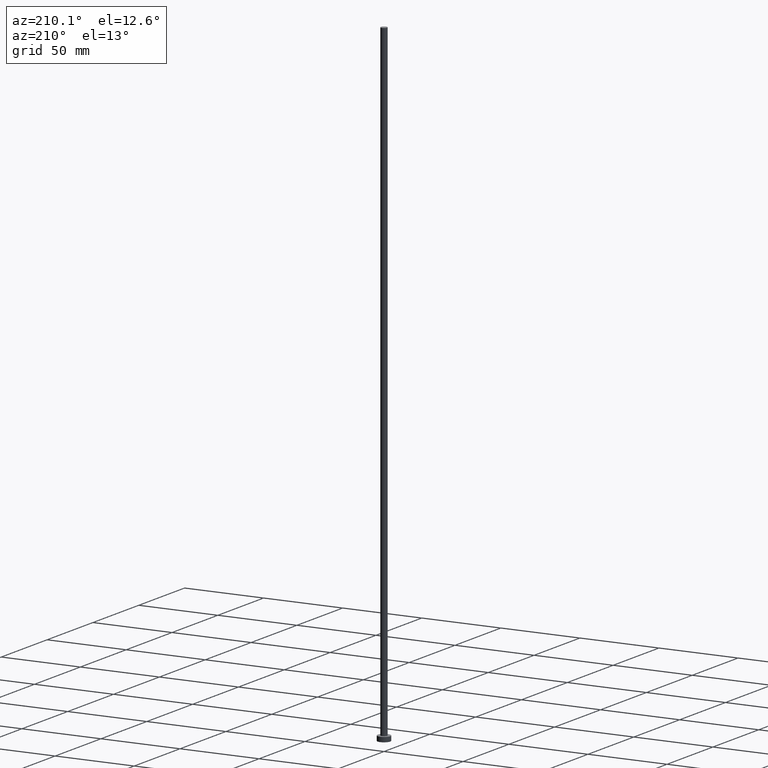
[diagram: clean part render]
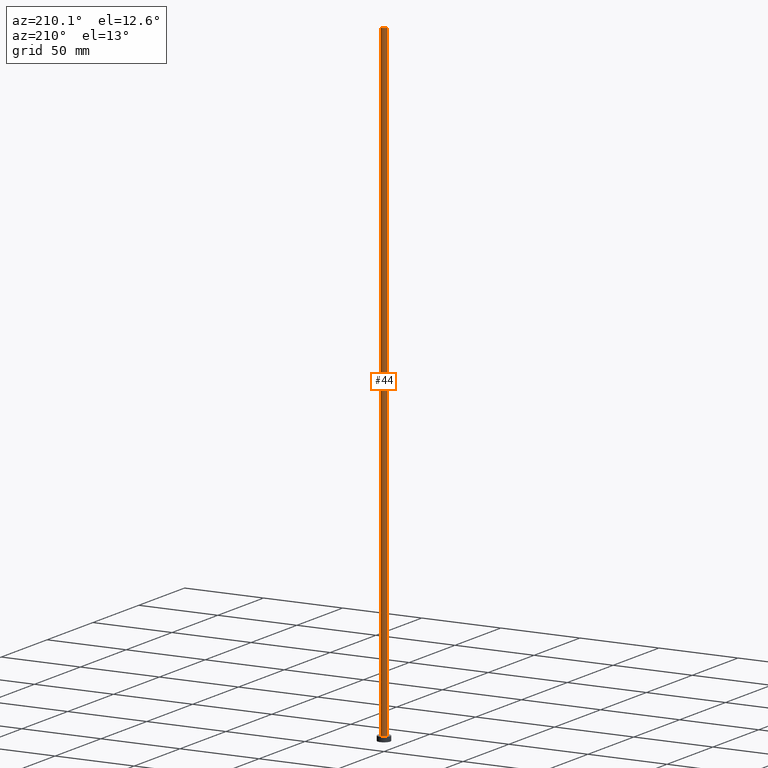
[diagram: same view with one face highlighted and labeled with its STEP entity id]
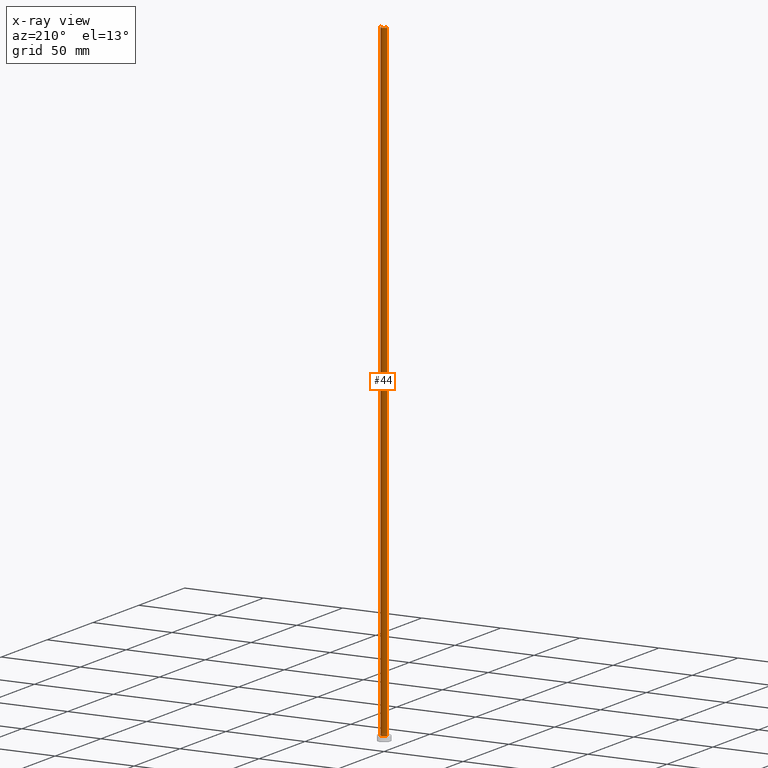
[diagram: x-ray of the same camera — body ghosted, the highlighted face saturated]
A machine part, auxiliary view. The second image highlights one B-rep face of the part: STEP entity #44.
The next image is the same camera in x-ray: the body ghosted, the highlighted face saturated — about 0% of this face is hidden behind the body in this view.
In plain terms, the highlighted cylindrical surface (edge-blend (fillet) strip) has radius 2 mm, axis along (-0, -0, -1).
Its self-contained STEP definition (entity closure, byte-faithful):
#7 = LINE ( 'NONE', #207, #130 ) ;
#9 = ORIENTED_EDGE ( 'NONE', *, *, #175, .T. ) ;
#14 = AXIS2_PLACEMENT_3D ( 'NONE', #233, #32, #137 ) ;
#24 = VERTEX_POINT ( 'NONE', #74 ) ;
#29 = AXIS2_PLACEMENT_3D ( 'NONE', #153, #35, #217 ) ;
#32 = DIRECTION ( 'NONE',  ( -0.000000000000000000, -0.000000000000000000, -1.000000000000000000 ) ) ;
#35 = DIRECTION ( 'NONE',  ( 0.000000000000000000, 0.000000000000000000, 1.000000000000000000 ) ) ;
#39 = CARTESIAN_POINT ( 'NONE',  ( 2.000000000000000000, 2.449293598294706414E-16, 3.000000000000000000 ) ) ;
#40 = EDGE_CURVE ( 'NONE', #61, #163, #86, .T. ) ;
#44 = ADVANCED_FACE ( 'NONE', ( #55 ), #118, .T. ) ;
#55 = FACE_OUTER_BOUND ( 'NONE', #182, .T. ) ;
#61 = VERTEX_POINT ( 'NONE', #39 ) ;
#67 = VECTOR ( 'NONE', #91, 1000.000000000000000 ) ;
#70 = CARTESIAN_POINT ( 'NONE',  ( -2.000000000000000000, 0.000000000000000000, 400.0000000000000000 ) ) ;
#73 = CARTESIAN_POINT ( 'NONE',  ( 0.000000000000000000, 0.000000000000000000, 400.0000000000000000 ) ) ;
#74 = CARTESIAN_POINT ( 'NONE',  ( 2.000000000000000000, 2.449293598294706414E-16, 400.0000000000000000 ) ) ;
#86 = CIRCLE ( 'NONE', #29, 2.000000000000000000 ) ;
#88 = ORIENTED_EDGE ( 'NONE', *, *, #161, .F. ) ;
#91 = DIRECTION ( 'NONE',  ( -0.000000000000000000, -0.000000000000000000, -1.000000000000000000 ) ) ;
#115 = DIRECTION ( 'NONE',  ( 0.000000000000000000, 0.000000000000000000, 1.000000000000000000 ) ) ;
#116 = AXIS2_PLACEMENT_3D ( 'NONE', #73, #115, #192 ) ;
#118 = CYLINDRICAL_SURFACE ( 'NONE', #14, 2.000000000000000000 ) ;
#127 = ORIENTED_EDGE ( 'NONE', *, *, #129, .F. ) ;
#129 = EDGE_CURVE ( 'NONE', #24, #201, #224, .T. ) ;
#130 = VECTOR ( 'NONE', #145, 1000.000000000000000 ) ;
#133 = CARTESIAN_POINT ( 'NONE',  ( -2.000000000000000000, 0.000000000000000000, 3.000000000000000000 ) ) ;
#137 = DIRECTION ( 'NONE',  ( -1.000000000000000000, 0.000000000000000000, 0.000000000000000000 ) ) ;
#145 = DIRECTION ( 'NONE',  ( -0.000000000000000000, -0.000000000000000000, -1.000000000000000000 ) ) ;
#153 = CARTESIAN_POINT ( 'NONE',  ( 0.000000000000000000, 0.000000000000000000, 3.000000000000000000 ) ) ;
#161 = EDGE_CURVE ( 'NONE', #201, #163, #7, .T. ) ;
#163 = VERTEX_POINT ( 'NONE', #133 ) ;
#168 = LINE ( 'NONE', #252, #67 ) ;
#175 = EDGE_CURVE ( 'NONE', #24, #61, #168, .T. ) ;
#182 = EDGE_LOOP ( 'NONE', ( #127, #9, #229, #88 ) ) ;
#192 = DIRECTION ( 'NONE',  ( 1.000000000000000000, 0.000000000000000000, 0.000000000000000000 ) ) ;
#201 = VERTEX_POINT ( 'NONE', #70 ) ;
#207 = CARTESIAN_POINT ( 'NONE',  ( -2.000000000000000000, 0.000000000000000000, 400.0000000000000000 ) ) ;
#217 = DIRECTION ( 'NONE',  ( 1.000000000000000000, 0.000000000000000000, 0.000000000000000000 ) ) ;
#224 = CIRCLE ( 'NONE', #116, 2.000000000000000000 ) ;
#229 = ORIENTED_EDGE ( 'NONE', *, *, #40, .T. ) ;
#233 = CARTESIAN_POINT ( 'NONE',  ( 0.000000000000000000, 0.000000000000000000, 400.0000000000000000 ) ) ;
#252 = CARTESIAN_POINT ( 'NONE',  ( 2.000000000000000000, 2.449293598294706414E-16, 400.0000000000000000 ) ) ;